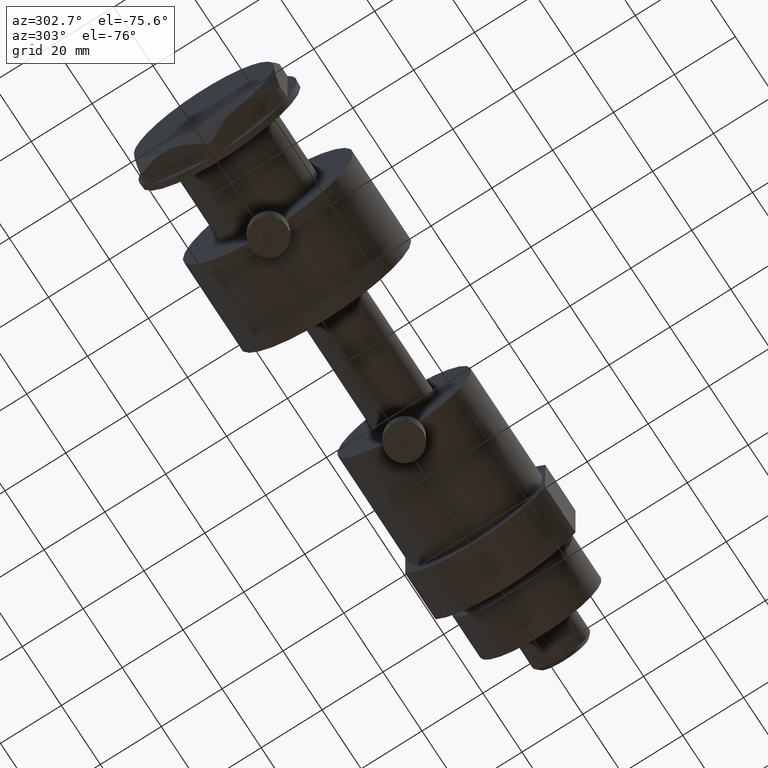
[diagram: clean part render]
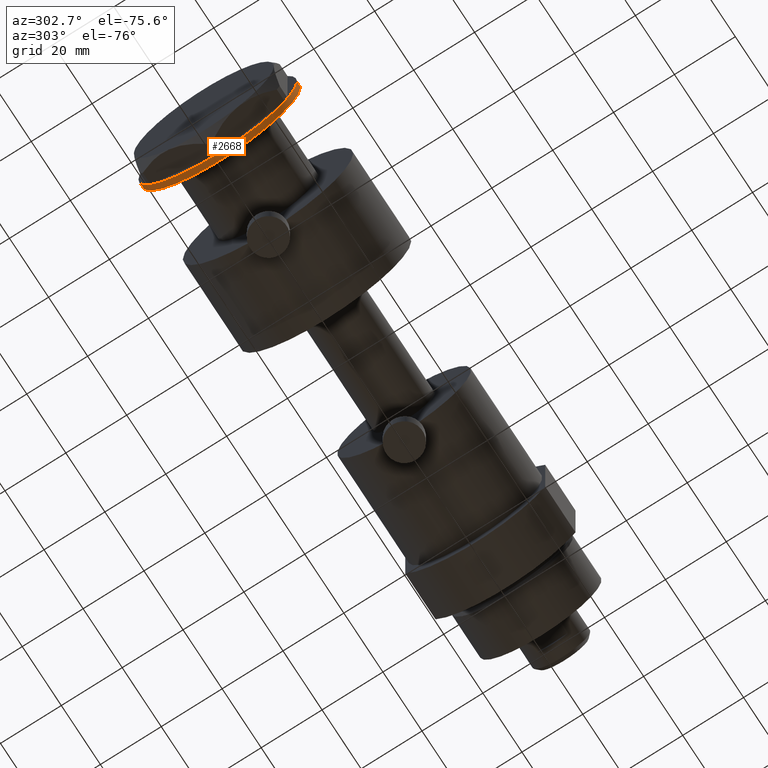
[diagram: same view with one face highlighted and labeled with its STEP entity id]
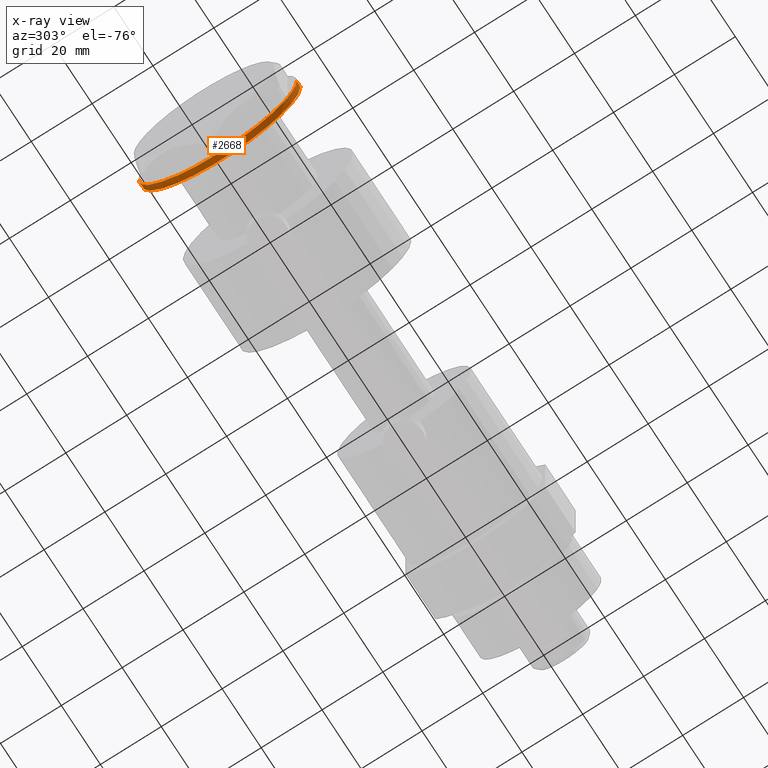
[diagram: x-ray of the same camera — body ghosted, the highlighted face saturated]
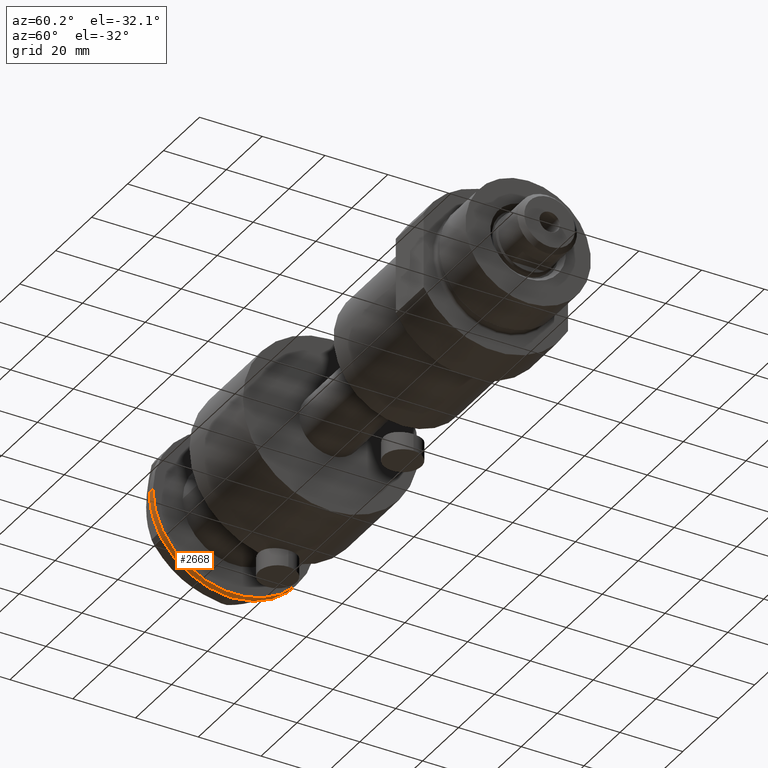
[diagram: same view with one face highlighted and labeled with its STEP entity id]
A machine part, auxiliary view. The second image highlights one B-rep face of the part: STEP entity #2668.
The next image is the same camera in x-ray: the body ghosted, the highlighted face saturated — about 0% of this face is hidden behind the body in this view.
A second angle (auxiliary view) of the same face is appended — the face is thin or edge-on in the first view.
In plain terms, the highlighted cylindrical surface (partial cylindrical patch) has radius 26 mm, axis along (-1, -0, 0).
Its self-contained STEP definition (entity closure, byte-faithful):
#45 = CIRCLE ( 'NONE', #3016, 26.00000000000000355 ) ;
#55 = ORIENTED_EDGE ( 'NONE', *, *, #1259, .T. ) ;
#82 = DIRECTION ( 'NONE',  ( 0.000000000000000000, 0.000000000000000000, -1.000000000000000000 ) ) ;
#84 = ORIENTED_EDGE ( 'NONE', *, *, #653, .T. ) ;
#117 = VERTEX_POINT ( 'NONE', #1718 ) ;
#135 = DIRECTION ( 'NONE',  ( 0.000000000000000000, 0.000000000000000000, -1.000000000000000000 ) ) ;
#161 = CARTESIAN_POINT ( 'NONE',  ( 0.000000000000000000, 0.000000000000000000, 0.000000000000000000 ) ) ;
#165 = AXIS2_PLACEMENT_3D ( 'NONE', #1513, #2608, #726 ) ;
#216 = CARTESIAN_POINT ( 'NONE',  ( -22.35837924876889460, 13.27037593168409835, 0.000000000000000000 ) ) ;
#254 = EDGE_CURVE ( 'NONE', #1739, #1451, #45, .T. ) ;
#261 = DIRECTION ( 'NONE',  ( -1.000000000000000000, 0.000000000000000000, 0.000000000000000000 ) ) ;
#345 = EDGE_CURVE ( 'NONE', #1446, #707, #3072, .T. ) ;
#373 = CARTESIAN_POINT ( 'NONE',  ( 0.000000000000000000, 0.000000000000000000, 0.000000000000000000 ) ) ;
#395 = VERTEX_POINT ( 'NONE', #1841 ) ;
#432 = DIRECTION ( 'NONE',  ( -1.000000000000000000, 0.000000000000000000, 0.000000000000000000 ) ) ;
#482 = CIRCLE ( 'NONE', #2050, 26.00000000000000355 ) ;
#490 = EDGE_CURVE ( 'NONE', #1739, #1446, #1553, .T. ) ;
#494 = EDGE_CURVE ( 'NONE', #3422, #756, #1293, .T. ) ;
#506 = CARTESIAN_POINT ( 'NONE',  ( 22.35837924876909710, 13.27037593168376084, 0.000000000000000000 ) ) ;
#542 = CARTESIAN_POINT ( 'NONE',  ( 26.00000000000000355, 0.000000000000000000, 0.000000000000000000 ) ) ;
#554 = ORIENTED_EDGE ( 'NONE', *, *, #801, .T. ) ;
#586 = AXIS2_PLACEMENT_3D ( 'NONE', #1941, #3325, #261 ) ;
#610 = ORIENTED_EDGE ( 'NONE', *, *, #2645, .T. ) ;
#612 = CARTESIAN_POINT ( 'NONE',  ( -0.3132930502240048320, 25.99811238272273783, 0.000000000000000000 ) ) ;
#653 = EDGE_CURVE ( 'NONE', #2172, #1512, #2152, .T. ) ;
#693 = VERTEX_POINT ( 'NONE', #840 ) ;
#706 = AXIS2_PLACEMENT_3D ( 'NONE', #2880, #135, #1251 ) ;
#707 = VERTEX_POINT ( 'NONE', #1680 ) ;
#710 = CARTESIAN_POINT ( 'NONE',  ( -26.00000000000000355, 3.184081677783118585E-15, 0.000000000000000000 ) ) ;
#726 = DIRECTION ( 'NONE',  ( -1.000000000000000000, 0.000000000000000000, 0.000000000000000000 ) ) ;
#756 = VERTEX_POINT ( 'NONE', #2853 ) ;
#772 = CYLINDRICAL_SURFACE ( 'NONE', #1937, 26.00000000000000355 ) ;
#800 = DIRECTION ( 'NONE',  ( -0.000000000000000000, -0.000000000000000000, 1.000000000000000000 ) ) ;
#801 = EDGE_CURVE ( 'NONE', #3070, #117, #1877, .T. ) ;
#824 = B_SPLINE_CURVE_WITH_KNOTS ( 'NONE', 3,
 ( #3465, #2126, #3540, #978 ),
 .UNSPECIFIED., .F., .F.,
 ( 4, 4 ),
 ( 0.000000000000000000, 1.000000000000000000 ),
 .UNSPECIFIED. ) ;
#840 = CARTESIAN_POINT ( 'NONE',  ( -22.67167229899245839, 12.72773645103865370, 0.000000000000000000 ) ) ;
#876 = CARTESIAN_POINT ( 'NONE',  ( 0.000000000000000000, 0.000000000000000000, 0.000000000000000000 ) ) ;
#929 = CIRCLE ( 'NONE', #2318, 26.00000000000000355 ) ;
#936 = DIRECTION ( 'NONE',  ( 0.000000000000000000, 0.000000000000000000, -1.000000000000000000 ) ) ;
#942 = CIRCLE ( 'NONE', #2965, 26.00000000000000355 ) ;
#944 = CIRCLE ( 'NONE', #1530, 26.00000000000000355 ) ;
#958 = CARTESIAN_POINT ( 'NONE',  ( -0.1044411259765276462, 26.00062917530480888, 0.000000000000000000 ) ) ;
#978 = CARTESIAN_POINT ( 'NONE',  ( -22.35837924876889460, 13.27037593168409835, 0.000000000000000000 ) ) ;
#1055 = EDGE_CURVE ( 'NONE', #117, #395, #942, .T. ) ;
#1061 = CARTESIAN_POINT ( 'NONE',  ( 26.00000000000000355, 0.000000000000000000, -2.000000000000000000 ) ) ;
#1083 = CARTESIAN_POINT ( 'NONE',  ( 0.000000000000000000, 0.000000000000000000, 0.000000000000000000 ) ) ;
#1094 = DIRECTION ( 'NONE',  ( -1.000000000000000000, 0.000000000000000000, 0.000000000000000000 ) ) ;
#1112 = CARTESIAN_POINT ( 'NONE',  ( 0.3132930502238189252, 25.99811238272274139, 0.000000000000000000 ) ) ;
#1215 = DIRECTION ( 'NONE',  ( -1.000000000000000000, 0.000000000000000000, 0.000000000000000000 ) ) ;
#1251 = DIRECTION ( 'NONE',  ( -1.000000000000000000, 0.000000000000000000, 0.000000000000000000 ) ) ;
#1259 = EDGE_CURVE ( 'NONE', #707, #693, #1817, .T. ) ;
#1268 = ORIENTED_EDGE ( 'NONE', *, *, #3471, .T. ) ;
#1274 = ORIENTED_EDGE ( 'NONE', *, *, #1284, .F. ) ;
#1284 = EDGE_CURVE ( 'NONE', #1451, #3239, #1752, .T. ) ;
#1293 = CIRCLE ( 'NONE', #1753, 26.00000000000000355 ) ;
#1364 = ORIENTED_EDGE ( 'NONE', *, *, #2798, .T. ) ;
#1387 = ORIENTED_EDGE ( 'NONE', *, *, #1528, .T. ) ;
#1434 = DIRECTION ( 'NONE',  ( 0.000000000000000000, 0.000000000000000000, -1.000000000000000000 ) ) ;
#1446 = VERTEX_POINT ( 'NONE', #710 ) ;
#1451 = VERTEX_POINT ( 'NONE', #1061 ) ;
#1493 = VERTEX_POINT ( 'NONE', #1112 ) ;
#1512 = VERTEX_POINT ( 'NONE', #1917 ) ;
#1513 = CARTESIAN_POINT ( 'NONE',  ( 0.000000000000000000, 0.000000000000000000, 0.000000000000000000 ) ) ;
#1528 = EDGE_CURVE ( 'NONE', #756, #3239, #944, .T. ) ;
#1530 = AXIS2_PLACEMENT_3D ( 'NONE', #3279, #3010, #2225 ) ;
#1531 = DIRECTION ( 'NONE',  ( -1.000000000000000000, 0.000000000000000000, 0.000000000000000000 ) ) ;
#1538 = CARTESIAN_POINT ( 'NONE',  ( 26.00000000000000355, 0.000000000000000000, -2.000000000000000000 ) ) ;
#1552 = EDGE_CURVE ( 'NONE', #1493, #2756, #3312, .T. ) ;
#1553 = LINE ( 'NONE', #2105, #2961 ) ;
#1576 = CARTESIAN_POINT ( 'NONE',  ( 22.56942594318081063, 12.90986591935732442, 0.000000000000000000 ) ) ;
#1578 = DIRECTION ( 'NONE',  ( -1.000000000000000000, 0.000000000000000000, 0.000000000000000000 ) ) ;
#1585 = AXIS2_PLACEMENT_3D ( 'NONE', #373, #936, #2618 ) ;
#1597 = DIRECTION ( 'NONE',  ( 1.000000000000000000, 0.000000000000000000, 0.000000000000000000 ) ) ;
#1680 = CARTESIAN_POINT ( 'NONE',  ( -22.99999999999999289, 12.12435565298215856, 0.000000000000000000 ) ) ;
#1705 = VERTEX_POINT ( 'NONE', #1803 ) ;
#1718 = CARTESIAN_POINT ( 'NONE',  ( -22.00000000000008171, 13.85640646055089498, 0.000000000000000000 ) ) ;
#1739 = VERTEX_POINT ( 'NONE', #2052 ) ;
#1752 = LINE ( 'NONE', #1538, #2906 ) ;
#1753 = AXIS2_PLACEMENT_3D ( 'NONE', #161, #3019, #1531 ) ;
#1790 = CARTESIAN_POINT ( 'NONE',  ( 0.000000000000000000, 0.000000000000000000, -2.000000000000000000 ) ) ;
#1803 = CARTESIAN_POINT ( 'NONE',  ( -0.3132930502240048320, 25.99811238272273783, 0.000000000000000000 ) ) ;
#1808 = DIRECTION ( 'NONE',  ( -0.000000000000000000, -0.000000000000000000, 1.000000000000000000 ) ) ;
#1817 = CIRCLE ( 'NONE', #706, 26.00000000000000355 ) ;
#1829 = DIRECTION ( 'NONE',  ( 0.000000000000000000, 0.000000000000000000, -1.000000000000000000 ) ) ;
#1830 = EDGE_CURVE ( 'NONE', #693, #3070, #824, .T. ) ;
#1841 = CARTESIAN_POINT ( 'NONE',  ( -0.9999999999999089617, 25.98076211353316367, 0.000000000000000000 ) ) ;
#1850 = ORIENTED_EDGE ( 'NONE', *, *, #2198, .T. ) ;
#1877 = CIRCLE ( 'NONE', #1585, 26.00000000000000355 ) ;
#1917 = CARTESIAN_POINT ( 'NONE',  ( 22.35837924876909710, 13.27037593168376084, 0.000000000000000000 ) ) ;
#1937 = AXIS2_PLACEMENT_3D ( 'NONE', #2959, #800, #1597 ) ;
#1941 = CARTESIAN_POINT ( 'NONE',  ( 0.000000000000000000, 0.000000000000000000, 0.000000000000000000 ) ) ;
#2050 = AXIS2_PLACEMENT_3D ( 'NONE', #876, #82, #1215 ) ;
#2052 = CARTESIAN_POINT ( 'NONE',  ( -26.00000000000000355, 3.184081677783118585E-15, -2.000000000000000000 ) ) ;
#2105 = CARTESIAN_POINT ( 'NONE',  ( -26.00000000000000355, 3.184081677783118585E-15, -2.000000000000000000 ) ) ;
#2125 = DIRECTION ( 'NONE',  ( -0.000000000000000000, -0.000000000000000000, 1.000000000000000000 ) ) ;
#2126 = CARTESIAN_POINT ( 'NONE',  ( -22.56942594318095630, 12.90986591935706329, 0.000000000000000000 ) ) ;
#2152 = CIRCLE ( 'NONE', #586, 26.00000000000000355 ) ;
#2172 = VERTEX_POINT ( 'NONE', #3151 ) ;
#2192 = B_SPLINE_CURVE_WITH_KNOTS ( 'NONE', 3,
 ( #506, #3011, #1576, #2702 ),
 .UNSPECIFIED., .F., .F.,
 ( 4, 4 ),
 ( 0.000000000000000000, 1.000000000000000000 ),
 .UNSPECIFIED. ) ;
#2198 = EDGE_CURVE ( 'NONE', #1705, #1493, #2417, .T. ) ;
#2225 = DIRECTION ( 'NONE',  ( -1.000000000000000000, 0.000000000000000000, 0.000000000000000000 ) ) ;
#2239 = CARTESIAN_POINT ( 'NONE',  ( 0.000000000000000000, 0.000000000000000000, 0.000000000000000000 ) ) ;
#2254 = CARTESIAN_POINT ( 'NONE',  ( 0.1044411259763403238, 26.00062917530480888, 0.000000000000000000 ) ) ;
#2318 = AXIS2_PLACEMENT_3D ( 'NONE', #2779, #3567, #2462 ) ;
#2417 = B_SPLINE_CURVE_WITH_KNOTS ( 'NONE', 3,
 ( #612, #958, #2254, #3364 ),
 .UNSPECIFIED., .F., .F.,
 ( 4, 4 ),
 ( 0.000000000000000000, 1.000000000000000000 ),
 .UNSPECIFIED. ) ;
#2428 = ORIENTED_EDGE ( 'NONE', *, *, #345, .T. ) ;
#2462 = DIRECTION ( 'NONE',  ( -1.000000000000000000, 0.000000000000000000, 0.000000000000000000 ) ) ;
#2588 = ORIENTED_EDGE ( 'NONE', *, *, #490, .T. ) ;
#2593 = ORIENTED_EDGE ( 'NONE', *, *, #494, .T. ) ;
#2608 = DIRECTION ( 'NONE',  ( 0.000000000000000000, 0.000000000000000000, -1.000000000000000000 ) ) ;
#2618 = DIRECTION ( 'NONE',  ( -1.000000000000000000, 0.000000000000000000, 0.000000000000000000 ) ) ;
#2645 = EDGE_CURVE ( 'NONE', #1512, #3422, #2192, .T. ) ;
#2668 = ADVANCED_FACE ( 'NONE', ( #2670 ), #772, .T. ) ;
#2670 = FACE_OUTER_BOUND ( 'NONE', #3021, .T. ) ;
#2678 = AXIS2_PLACEMENT_3D ( 'NONE', #2239, #1434, #1094 ) ;
#2682 = CARTESIAN_POINT ( 'NONE',  ( 22.67167229899214220, 12.72773645103922036, 0.000000000000000000 ) ) ;
#2702 = CARTESIAN_POINT ( 'NONE',  ( 22.67167229899214220, 12.72773645103922036, 0.000000000000000000 ) ) ;
#2756 = VERTEX_POINT ( 'NONE', #3588 ) ;
#2779 = CARTESIAN_POINT ( 'NONE',  ( 0.000000000000000000, 0.000000000000000000, 0.000000000000000000 ) ) ;
#2798 = EDGE_CURVE ( 'NONE', #395, #1705, #482, .T. ) ;
#2853 = CARTESIAN_POINT ( 'NONE',  ( 22.99999999999982592, 12.12435565298247653, 0.000000000000000000 ) ) ;
#2880 = CARTESIAN_POINT ( 'NONE',  ( 0.000000000000000000, 0.000000000000000000, 0.000000000000000000 ) ) ;
#2886 = ORIENTED_EDGE ( 'NONE', *, *, #254, .F. ) ;
#2906 = VECTOR ( 'NONE', #1808, 1000.000000000000000 ) ;
#2945 = ORIENTED_EDGE ( 'NONE', *, *, #1552, .T. ) ;
#2959 = CARTESIAN_POINT ( 'NONE',  ( 0.000000000000000000, 0.000000000000000000, -2.000000000000000000 ) ) ;
#2961 = VECTOR ( 'NONE', #2125, 1000.000000000000000 ) ;
#2965 = AXIS2_PLACEMENT_3D ( 'NONE', #1083, #3283, #1578 ) ;
#3010 = DIRECTION ( 'NONE',  ( 0.000000000000000000, 0.000000000000000000, -1.000000000000000000 ) ) ;
#3011 = CARTESIAN_POINT ( 'NONE',  ( 22.46498481720466245, 13.09076325594771006, 0.000000000000000000 ) ) ;
#3016 = AXIS2_PLACEMENT_3D ( 'NONE', #1790, #1829, #432 ) ;
#3019 = DIRECTION ( 'NONE',  ( 0.000000000000000000, 0.000000000000000000, -1.000000000000000000 ) ) ;
#3021 = EDGE_LOOP ( 'NONE', ( #2886, #2588, #2428, #55, #3582, #554, #3486, #1364, #1850, #2945, #1268, #84, #610, #2593, #1387, #1274 ) ) ;
#3070 = VERTEX_POINT ( 'NONE', #216 ) ;
#3072 = CIRCLE ( 'NONE', #165, 26.00000000000000355 ) ;
#3151 = CARTESIAN_POINT ( 'NONE',  ( 21.99999999999987210, 13.85640646055121827, 0.000000000000000000 ) ) ;
#3239 = VERTEX_POINT ( 'NONE', #542 ) ;
#3279 = CARTESIAN_POINT ( 'NONE',  ( 0.000000000000000000, 0.000000000000000000, 0.000000000000000000 ) ) ;
#3283 = DIRECTION ( 'NONE',  ( 0.000000000000000000, 0.000000000000000000, -1.000000000000000000 ) ) ;
#3312 = CIRCLE ( 'NONE', #2678, 26.00000000000000355 ) ;
#3325 = DIRECTION ( 'NONE',  ( 0.000000000000000000, 0.000000000000000000, -1.000000000000000000 ) ) ;
#3364 = CARTESIAN_POINT ( 'NONE',  ( 0.3132930502238189252, 25.99811238272274139, 0.000000000000000000 ) ) ;
#3422 = VERTEX_POINT ( 'NONE', #2682 ) ;
#3465 = CARTESIAN_POINT ( 'NONE',  ( -22.67167229899245839, 12.72773645103865370, 0.000000000000000000 ) ) ;
#3471 = EDGE_CURVE ( 'NONE', #2756, #2172, #929, .T. ) ;
#3486 = ORIENTED_EDGE ( 'NONE', *, *, #1055, .T. ) ;
#3540 = CARTESIAN_POINT ( 'NONE',  ( -22.46498481720463758, 13.09076325594775092, 0.000000000000000000 ) ) ;
#3567 = DIRECTION ( 'NONE',  ( 0.000000000000000000, 0.000000000000000000, -1.000000000000000000 ) ) ;
#3582 = ORIENTED_EDGE ( 'NONE', *, *, #1830, .T. ) ;
#3588 = CARTESIAN_POINT ( 'NONE',  ( 0.9999999999999297229, 25.98076211353316722, 0.000000000000000000 ) ) ;